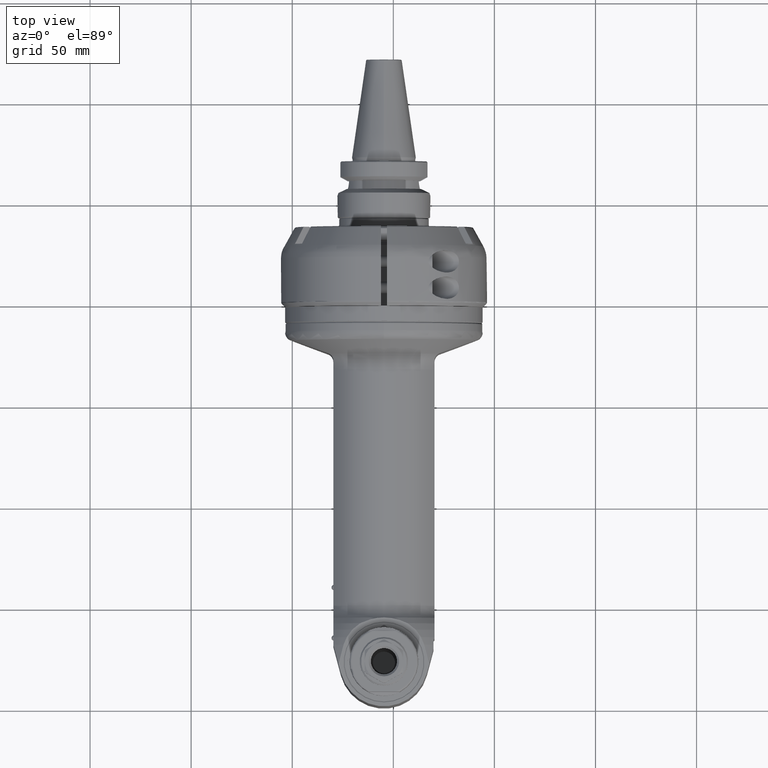
[diagram: clean part render]
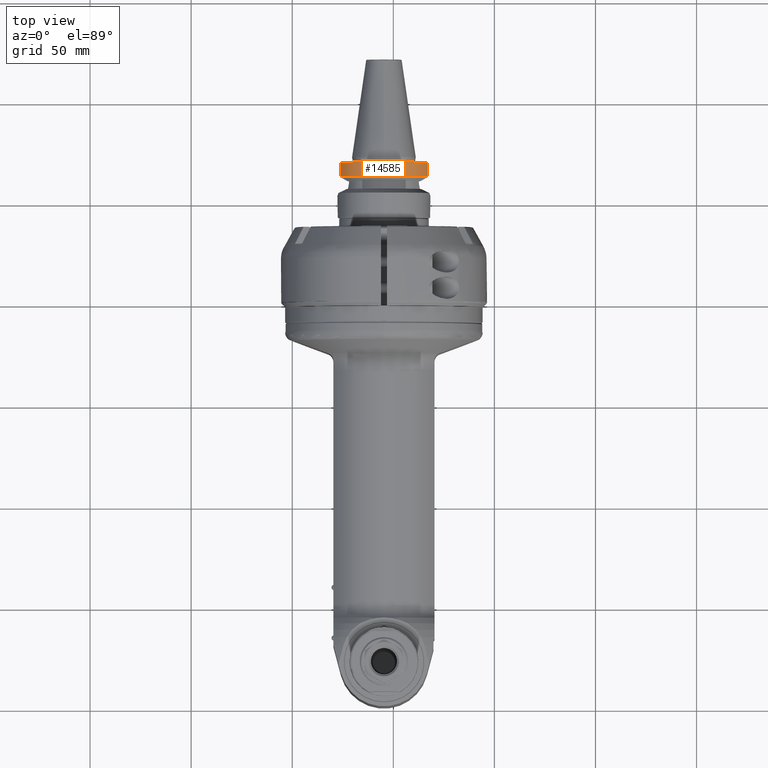
[diagram: same view with one face highlighted and labeled with its STEP entity id]
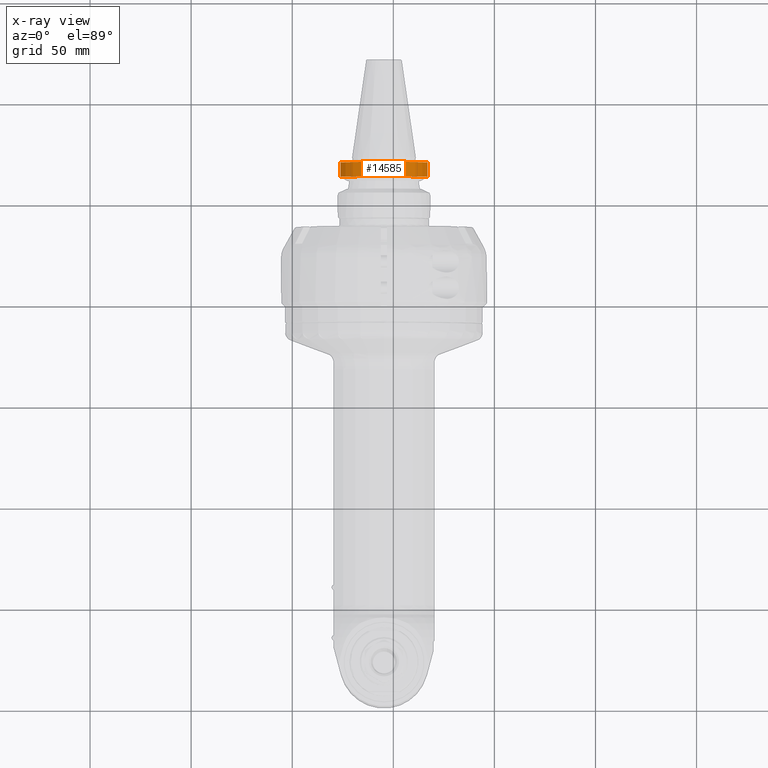
[diagram: x-ray of the same camera — body ghosted, the highlighted face saturated]
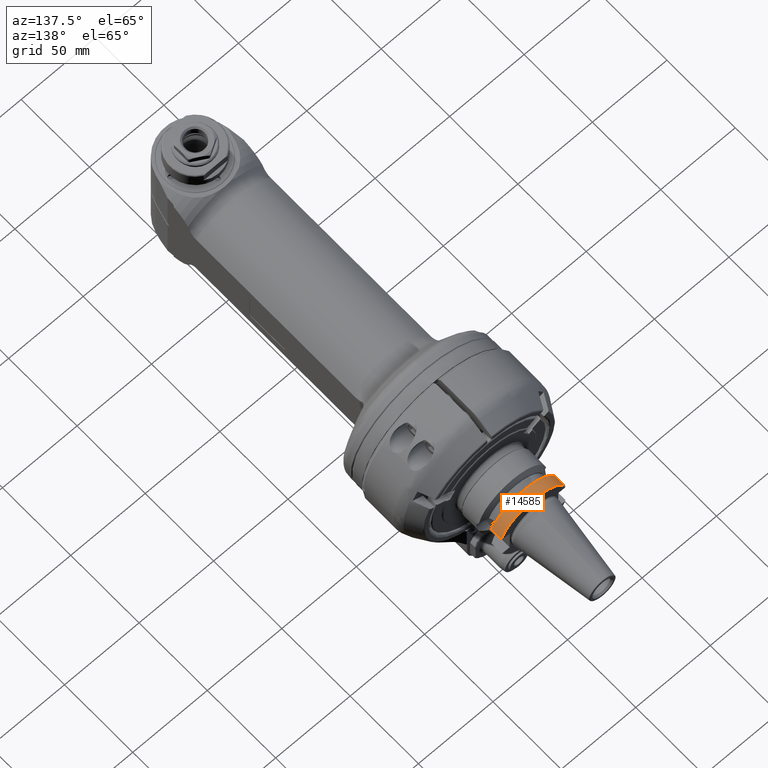
[diagram: same view with one face highlighted and labeled with its STEP entity id]
A machine part, top view. The second image highlights one B-rep face of the part: STEP entity #14585.
The next image is the same camera in x-ray: the body ghosted, the highlighted face saturated — about 0% of this face is hidden behind the body in this view.
A second angle (auxiliary view) of the same face is appended — the face is thin or edge-on in the first view.
In plain terms, the highlighted cylindrical surface (partial cylindrical patch) has radius 23 mm, axis along (0, -1, 0).
Its self-contained STEP definition (entity closure, byte-faithful):
#735=CYLINDRICAL_SURFACE('',#15909,23.);
#1418=CIRCLE('',#15903,23.);
#1421=CIRCLE('',#15908,23.);
#2289=FACE_OUTER_BOUND('',#3219,.T.);
#3219=EDGE_LOOP('',(#11831,#11832,#11833,#11834));
#4345=LINE('',#24342,#5401);
#4348=LINE('',#24368,#5404);
#5401=VECTOR('',#18966,7.10010961952411);
#5404=VECTOR('',#18981,7.10010961896511);
#6704=VERTEX_POINT('',#24337);
#6705=VERTEX_POINT('',#24341);
#6708=VERTEX_POINT('',#24349);
#6711=VERTEX_POINT('',#24366);
#8521=EDGE_CURVE('',#6705,#6704,#4345,.T.);
#8526=EDGE_CURVE('',#6708,#6704,#1418,.T.);
#8531=EDGE_CURVE('',#6708,#6711,#4348,.T.);
#8534=EDGE_CURVE('',#6705,#6711,#1421,.T.);
#11831=ORIENTED_EDGE('',*,*,#8526,.F.);
#11832=ORIENTED_EDGE('',*,*,#8531,.T.);
#11833=ORIENTED_EDGE('',*,*,#8534,.F.);
#11834=ORIENTED_EDGE('',*,*,#8521,.T.);
#14585=ADVANCED_FACE('',(#2289),#735,.T.);
#15903=AXIS2_PLACEMENT_3D('',#24353,#18973,#18974);
#15908=AXIS2_PLACEMENT_3D('',#24373,#18986,#18987);
#15909=AXIS2_PLACEMENT_3D('',#24374,#18988,#18989);
#18966=DIRECTION('',(6.17859939530191E-8,-0.999999999999984,1.65365706288097E-7));
#18973=DIRECTION('center_axis',(0.,-1.,0.));
#18974=DIRECTION('ref_axis',(0.,0.,1.));
#18981=DIRECTION('',(6.1797974924509E-8,0.999999999999984,-1.65397774300897E-7));
#18986=DIRECTION('center_axis',(0.,1.,0.));
#18987=DIRECTION('ref_axis',(0.,0.,1.));
#18988=DIRECTION('center_axis',(0.,-1.,0.));
#18989=DIRECTION('ref_axis',(2.49914604315182E-14,0.,1.));
#24337=CARTESIAN_POINT('',(-21.5452427989385,64.399882623942,8.05000058805202));
#24341=CARTESIAN_POINT('',(-21.54524309447,71.5,8.05));
#24342=CARTESIAN_POINT('',(-21.54524309447,71.5,8.05));
#24349=CARTESIAN_POINT('',(21.5452427988824,64.3998826239342,8.05000058816573));
#24353=CARTESIAN_POINT('Origin',(0.,64.39988266495,0.));
#24366=CARTESIAN_POINT('',(21.54524309447,71.5,8.05));
#24368=CARTESIAN_POINT('',(21.5452426557,64.39989038104,8.050001174342));
#24373=CARTESIAN_POINT('Origin',(0.,71.5,0.));
#24374=CARTESIAN_POINT('Origin',(0.,44.5,0.));